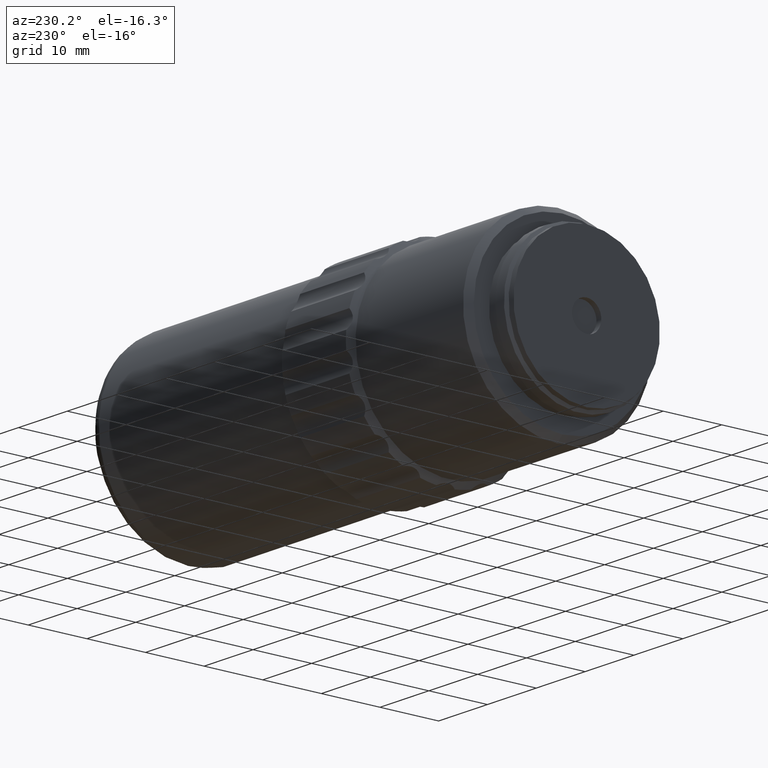
[diagram: clean part render]
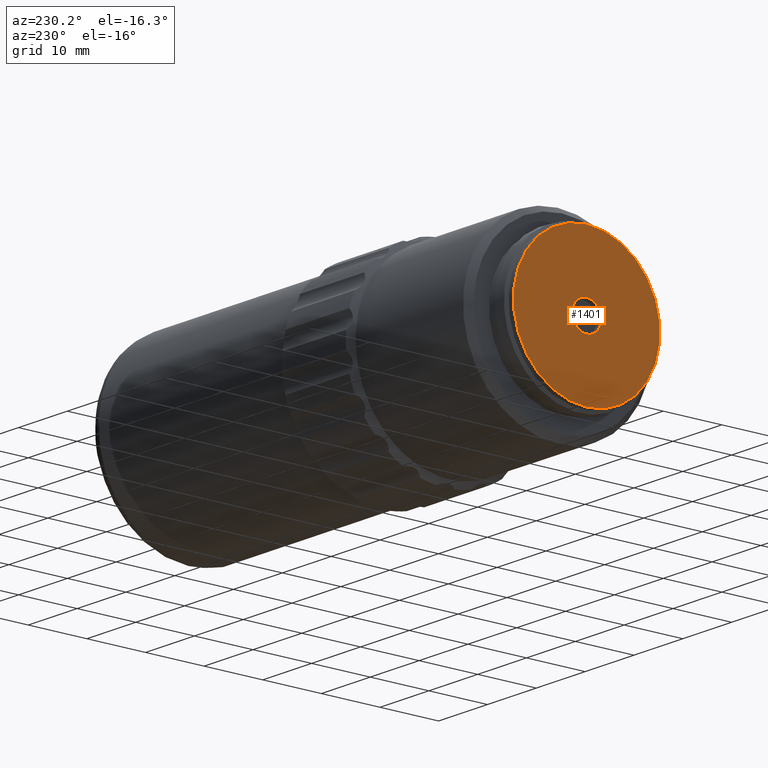
[diagram: same view with one face highlighted and labeled with its STEP entity id]
A machine part, auxiliary view. The second image highlights one B-rep face of the part: STEP entity #1401.
In plain terms, the highlighted planar face has unit normal (-1, 0, 0).
Its self-contained STEP definition (entity closure, byte-faithful):
#140 = DIRECTION ( 'NONE',  ( 1.000000000000000000, -0.000000000000000000, -0.000000000000000000 ) ) ;
#253 = DIRECTION ( 'NONE',  ( 1.000000000000000000, -0.000000000000000000, -0.000000000000000000 ) ) ;
#408 = ORIENTED_EDGE ( 'NONE', *, *, #2173, .T. ) ;
#489 = EDGE_LOOP ( 'NONE', ( #408 ) ) ;
#522 = CARTESIAN_POINT ( 'NONE',  ( 7.337040000000000006, 46.02096199999999726, 0.000000000000000000 ) ) ;
#566 = AXIS2_PLACEMENT_3D ( 'NONE', #1237, #737, #1950 ) ;
#695 = CARTESIAN_POINT ( 'NONE',  ( 7.337040000000000006, 46.02096199999999726, 0.000000000000000000 ) ) ;
#737 = DIRECTION ( 'NONE',  ( -1.000000000000000000, 0.000000000000000000, 0.000000000000000000 ) ) ;
#878 = DIRECTION ( 'NONE',  ( 0.000000000000000000, 0.000000000000000000, 1.000000000000000000 ) ) ;
#888 = EDGE_LOOP ( 'NONE', ( #1181 ) ) ;
#977 = CIRCLE ( 'NONE', #1416, 12.50000000000000000 ) ;
#997 = VERTEX_POINT ( 'NONE', #1870 ) ;
#1076 = PLANE ( 'NONE',  #566 ) ;
#1105 = DIRECTION ( 'NONE',  ( 0.000000000000000000, 0.000000000000000000, 1.000000000000000000 ) ) ;
#1181 = ORIENTED_EDGE ( 'NONE', *, *, #1665, .F. ) ;
#1237 = CARTESIAN_POINT ( 'NONE',  ( 7.337040000000000006, 57.87096199999999868, 0.000000000000000000 ) ) ;
#1253 = FACE_OUTER_BOUND ( 'NONE', #888, .T. ) ;
#1401 = ADVANCED_FACE ( 'NONE', ( #1614, #1253 ), #1076, .T. ) ;
#1416 = AXIS2_PLACEMENT_3D ( 'NONE', #522, #140, #878 ) ;
#1515 = VERTEX_POINT ( 'NONE', #1697 ) ;
#1614 = FACE_BOUND ( 'NONE', #489, .T. ) ;
#1623 = CIRCLE ( 'NONE', #2182, 2.500000000000000000 ) ;
#1665 = EDGE_CURVE ( 'NONE', #997, #997, #977, .T. ) ;
#1697 = CARTESIAN_POINT ( 'NONE',  ( 7.337040000000000006, 46.02096199999999726, 2.500000000000000000 ) ) ;
#1870 = CARTESIAN_POINT ( 'NONE',  ( 7.337040000000000006, 46.02096199999999726, 12.50000000000000000 ) ) ;
#1950 = DIRECTION ( 'NONE',  ( 0.000000000000000000, 0.000000000000000000, 1.000000000000000000 ) ) ;
#2173 = EDGE_CURVE ( 'NONE', #1515, #1515, #1623, .T. ) ;
#2182 = AXIS2_PLACEMENT_3D ( 'NONE', #695, #253, #1105 ) ;